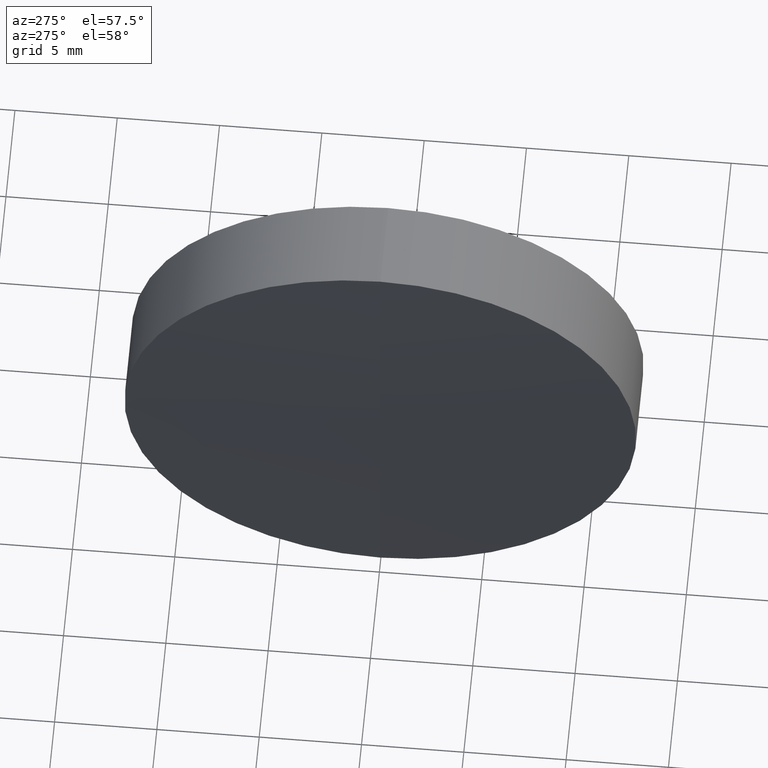
[diagram: clean part render]
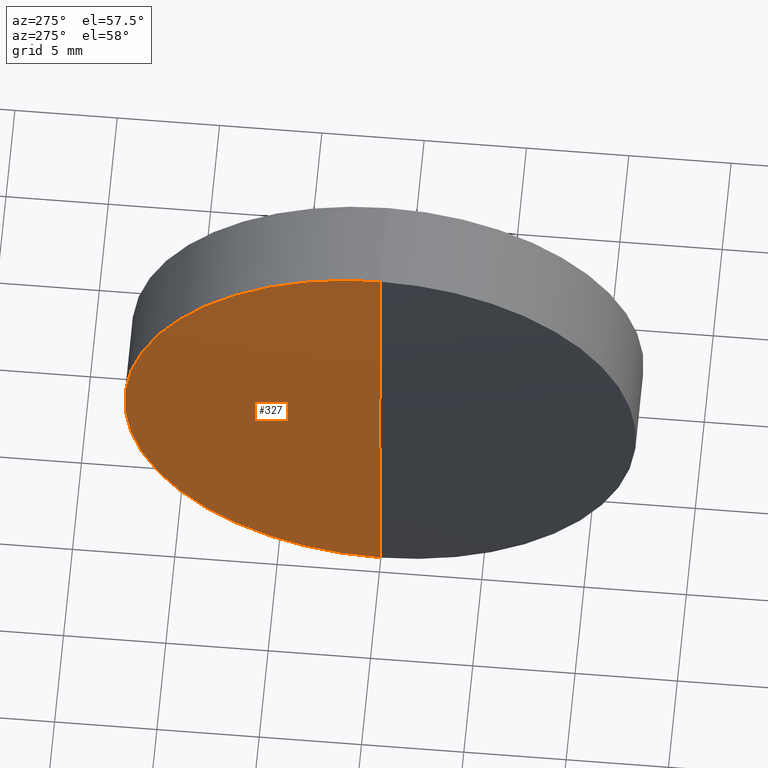
[diagram: same view with one face highlighted and labeled with its STEP entity id]
A machine part, auxiliary view. The second image highlights one B-rep face of the part: STEP entity #327.
In plain terms, the highlighted spherical surface has radius 307 mm.
Its self-contained STEP definition (entity closure, byte-faithful):
#9 = SPHERICAL_SURFACE ( 'NONE', #91, 307.0000000000000600 ) ;
#17 = VERTEX_POINT ( 'NONE', #166 ) ;
#41 = EDGE_CURVE ( 'NONE', #17, #330, #340, .T. ) ;
#50 = DIRECTION ( 'NONE',  ( 0.0000000000000000000, 0.0000000000000000000, -1.000000000000000000 ) ) ;
#70 = FACE_OUTER_BOUND ( 'NONE', #155, .T. ) ;
#80 = CARTESIAN_POINT ( 'NONE',  ( 522.2396689735747900, 0.0000000000000000000, -1.501556658541519300E-015 ) ) ;
#91 = AXIS2_PLACEMENT_3D ( 'NONE', #339, #124, #258 ) ;
#101 = DIRECTION ( 'NONE',  ( 0.0000000000000000000, -1.224646799147353200E-016, 1.000000000000000000 ) ) ;
#115 = DIRECTION ( 'NONE',  ( -0.0000000000000000000, 1.000000000000000000, 1.224646799147353200E-016 ) ) ;
#117 = EDGE_CURVE ( 'NONE', #17, #342, #232, .T. ) ;
#120 = DIRECTION ( 'NONE',  ( 0.0000000000000000000, 0.0000000000000000000, 1.000000000000000000 ) ) ;
#124 = DIRECTION ( 'NONE',  ( 0.0000000000000000000, 1.000000000000000000, 0.0000000000000000000 ) ) ;
#126 = CARTESIAN_POINT ( 'NONE',  ( 215.2396689735747100, 0.0000000000000000000, 1.729677170837035700E-014 ) ) ;
#152 = CARTESIAN_POINT ( 'NONE',  ( 215.4942533599098600, 0.0000000000000000000, 0.0000000000000000000 ) ) ;
#155 = EDGE_LOOP ( 'NONE', ( #223, #237, #278 ) ) ;
#166 = CARTESIAN_POINT ( 'NONE',  ( 215.4942533599098600, 0.0000000000000000000, 12.49999999999993100 ) ) ;
#173 = AXIS2_PLACEMENT_3D ( 'NONE', #80, #244, #50 ) ;
#180 = CARTESIAN_POINT ( 'NONE',  ( 215.4942533599098600, 1.530808498934183000E-015, -12.49999999999993400 ) ) ;
#202 = EDGE_CURVE ( 'NONE', #342, #330, #292, .T. ) ;
#219 = AXIS2_PLACEMENT_3D ( 'NONE', #152, #337, #120 ) ;
#223 = ORIENTED_EDGE ( 'NONE', *, *, #117, .T. ) ;
#232 = CIRCLE ( 'NONE', #219, 12.49999999999999800 ) ;
#237 = ORIENTED_EDGE ( 'NONE', *, *, #202, .T. ) ;
#244 = DIRECTION ( 'NONE',  ( 0.0000000000000000000, -1.000000000000000000, 0.0000000000000000000 ) ) ;
#258 = DIRECTION ( 'NONE',  ( 0.0000000000000000000, 0.0000000000000000000, 1.000000000000000000 ) ) ;
#278 = ORIENTED_EDGE ( 'NONE', *, *, #41, .F. ) ;
#292 = CIRCLE ( 'NONE', #307, 307.0000000000000600 ) ;
#307 = AXIS2_PLACEMENT_3D ( 'NONE', #310, #115, #101 ) ;
#310 = CARTESIAN_POINT ( 'NONE',  ( 522.2396689735747900, 0.0000000000000000000, -1.501556658541519300E-015 ) ) ;
#327 = ADVANCED_FACE ( 'NONE', ( #70 ), #9, .T. ) ;
#330 = VERTEX_POINT ( 'NONE', #126 ) ;
#337 = DIRECTION ( 'NONE',  ( -1.000000000000000000, -0.0000000000000000000, -0.0000000000000000000 ) ) ;
#339 = CARTESIAN_POINT ( 'NONE',  ( 522.2396689735747900, 0.0000000000000000000, -1.501556658541519300E-015 ) ) ;
#340 = CIRCLE ( 'NONE', #173, 307.0000000000000600 ) ;
#342 = VERTEX_POINT ( 'NONE', #180 ) ;